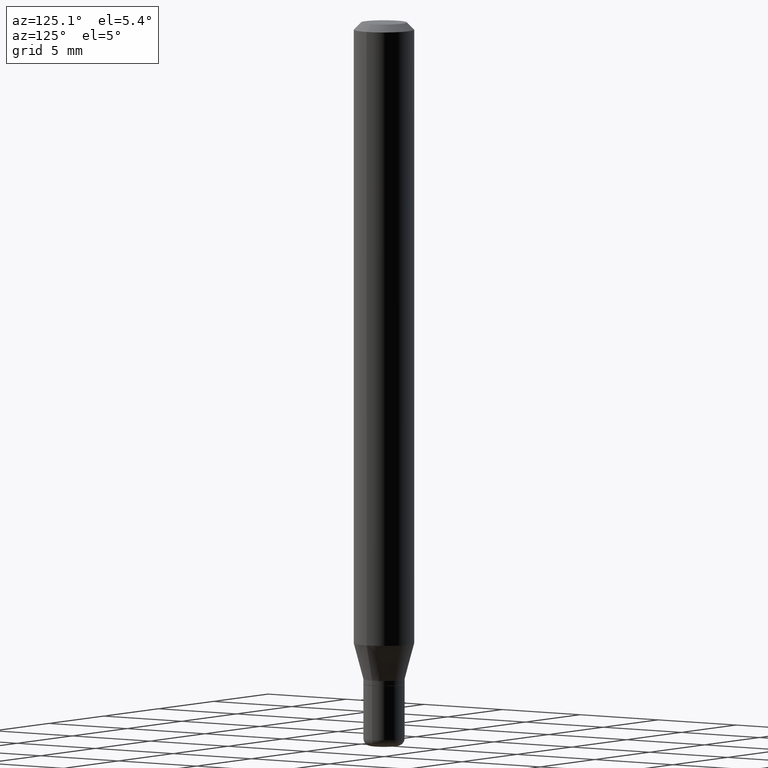
[diagram: clean part render]
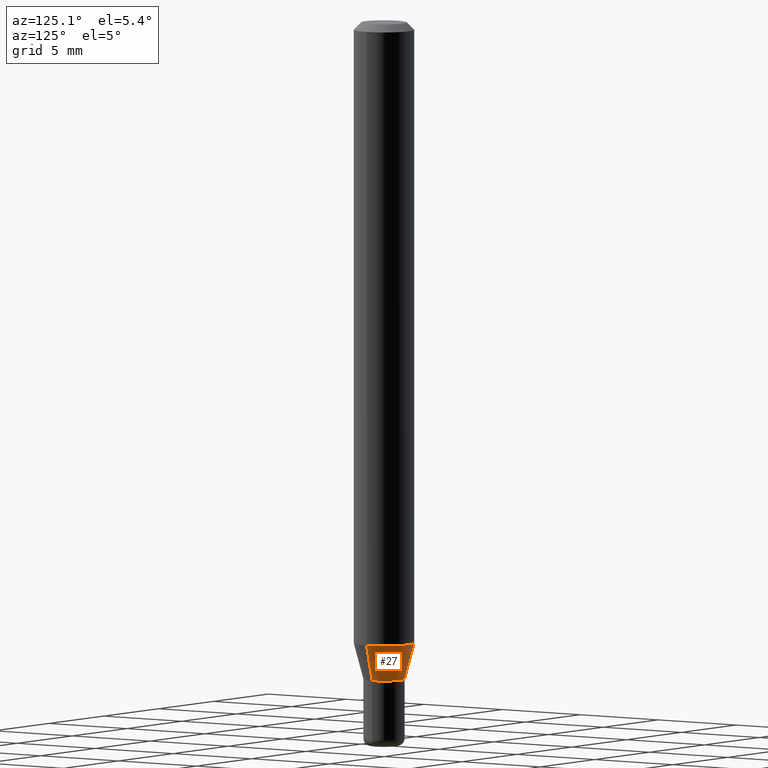
[diagram: same view with one face highlighted and labeled with its STEP entity id]
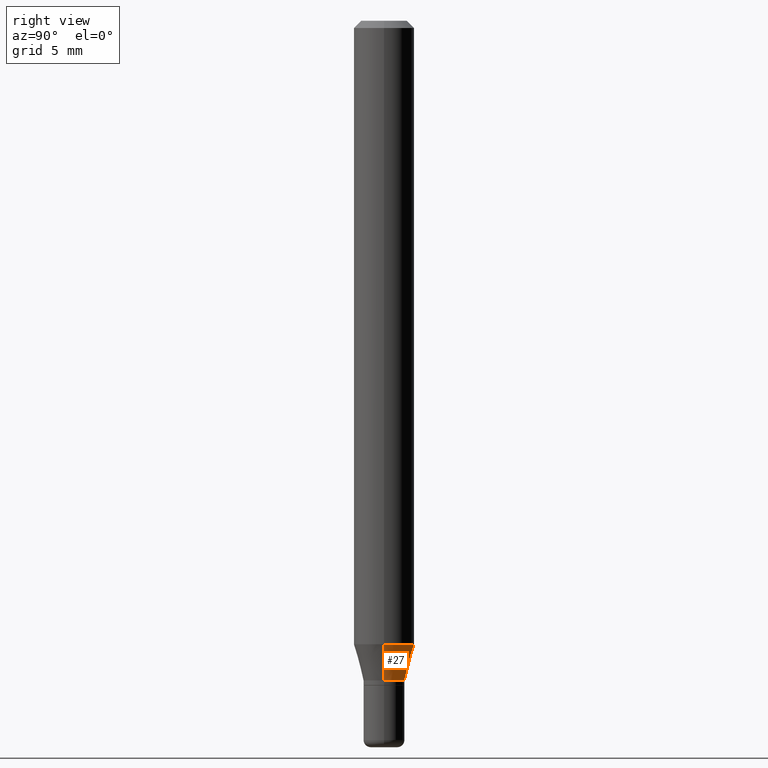
[diagram: same view with one face highlighted and labeled with its STEP entity id]
A machine part, auxiliary view. The second image highlights one B-rep face of the part: STEP entity #27.
A second angle (right view) of the same face is appended — the face is thin or edge-on in the first view.
In plain terms, the highlighted conical surface has half-angle 15 deg.
Its self-contained STEP definition (entity closure, byte-faithful):
#14 = AXIS2_PLACEMENT_3D ( 'NONE', #64, #374, #252 ) ;
#19 = LINE ( 'NONE', #178, #339 ) ;
#26 = DIRECTION ( 'NONE',  ( 1.000000000000000000, -6.982962677686262766E-15, 0.000000000000000000 ) ) ;
#27 = ADVANCED_FACE ( 'NONE', ( #93 ), #467, .T. ) ;
#42 = ORIENTED_EDGE ( 'NONE', *, *, #101, .F. ) ;
#45 = CARTESIAN_POINT ( 'NONE',  ( 3.330728514024156148E-29, -4.755397583504364259E-15, -1.362000000000000099 ) ) ;
#59 = CARTESIAN_POINT ( 'NONE',  ( 0.04250000000000000999, -5.052173497306030910E-15, -1.362000000000000099 ) ) ;
#62 = CIRCLE ( 'NONE', #129, 0.06250000000000000000 ) ;
#64 = CARTESIAN_POINT ( 'NONE',  ( 3.330728514024156148E-29, -4.755397583504364259E-15, -1.362000000000000099 ) ) ;
#93 = FACE_OUTER_BOUND ( 'NONE', #172, .T. ) ;
#101 = EDGE_CURVE ( 'NONE', #259, #127, #62, .T. ) ;
#102 = CIRCLE ( 'NONE', #14, 0.04250000000000000999 ) ;
#127 = VERTEX_POINT ( 'NONE', #149 ) ;
#129 = AXIS2_PLACEMENT_3D ( 'NONE', #296, #220, #26 ) ;
#135 = EDGE_CURVE ( 'NONE', #151, #322, #102, .T. ) ;
#149 = CARTESIAN_POINT ( 'NONE',  ( -0.06250000000000000000, -4.050700658649477240E-15, -1.287358983848622573 ) ) ;
#151 = VERTEX_POINT ( 'NONE', #59 ) ;
#161 = ORIENTED_EDGE ( 'NONE', *, *, #135, .T. ) ;
#167 = EDGE_CURVE ( 'NONE', #322, #127, #19, .T. ) ;
#171 = DIRECTION ( 'NONE',  ( 1.000000000000000000, -6.982962677686273810E-15, 0.000000000000000000 ) ) ;
#172 = EDGE_LOOP ( 'NONE', ( #161, #185, #42, #385 ) ) ;
#178 = CARTESIAN_POINT ( 'NONE',  ( -0.04250000000000000999, -4.453416920806321806E-15, -1.362000000000000099 ) ) ;
#185 = ORIENTED_EDGE ( 'NONE', *, *, #167, .T. ) ;
#192 = CARTESIAN_POINT ( 'NONE',  ( 0.06250000000000000000, -4.931225035854931526E-15, -1.287358983848622573 ) ) ;
#220 = DIRECTION ( 'NONE',  ( -2.445468806185136597E-29, 3.491481338843145583E-15, 1.000000000000000000 ) ) ;
#242 = DIRECTION ( 'NONE',  ( -2.445468806185136597E-29, 3.491481338843145583E-15, 1.000000000000000000 ) ) ;
#252 = DIRECTION ( 'NONE',  ( 1.000000000000000000, -6.982962677686273810E-15, 0.000000000000000000 ) ) ;
#259 = VERTEX_POINT ( 'NONE', #192 ) ;
#264 = EDGE_CURVE ( 'NONE', #151, #259, #302, .T. ) ;
#296 = CARTESIAN_POINT ( 'NONE',  ( 3.148196237364001258E-29, -4.494789868499539856E-15, -1.287358983848622573 ) ) ;
#302 = LINE ( 'NONE', #466, #416 ) ;
#322 = VERTEX_POINT ( 'NONE', #472 ) ;
#339 = VECTOR ( 'NONE', #499, 39.37007874015748854 ) ;
#374 = DIRECTION ( 'NONE',  ( -2.445468806185136597E-29, 3.491481338843145583E-15, 1.000000000000000000 ) ) ;
#381 = AXIS2_PLACEMENT_3D ( 'NONE', #45, #242, #171 ) ;
#385 = ORIENTED_EDGE ( 'NONE', *, *, #264, .F. ) ;
#416 = VECTOR ( 'NONE', #509, 39.37007874015748854 ) ;
#466 = CARTESIAN_POINT ( 'NONE',  ( 0.04250000000000000999, -5.052173497306030910E-15, -1.362000000000000099 ) ) ;
#467 = CONICAL_SURFACE ( 'NONE', #381, 0.04250000000000000999, 0.2617993877991491303 ) ;
#472 = CARTESIAN_POINT ( 'NONE',  ( -0.04250000000000000999, -4.252058789727899129E-15, -1.362000000000000099 ) ) ;
#499 = DIRECTION ( 'NONE',  ( -0.2588190451025204619, 5.211531920934543942E-15, 0.9659258262890684232 ) ) ;
#509 = DIRECTION ( 'NONE',  ( 0.2588190451025204619, 1.565188264969629067E-15, 0.9659258262890684232 ) ) ;